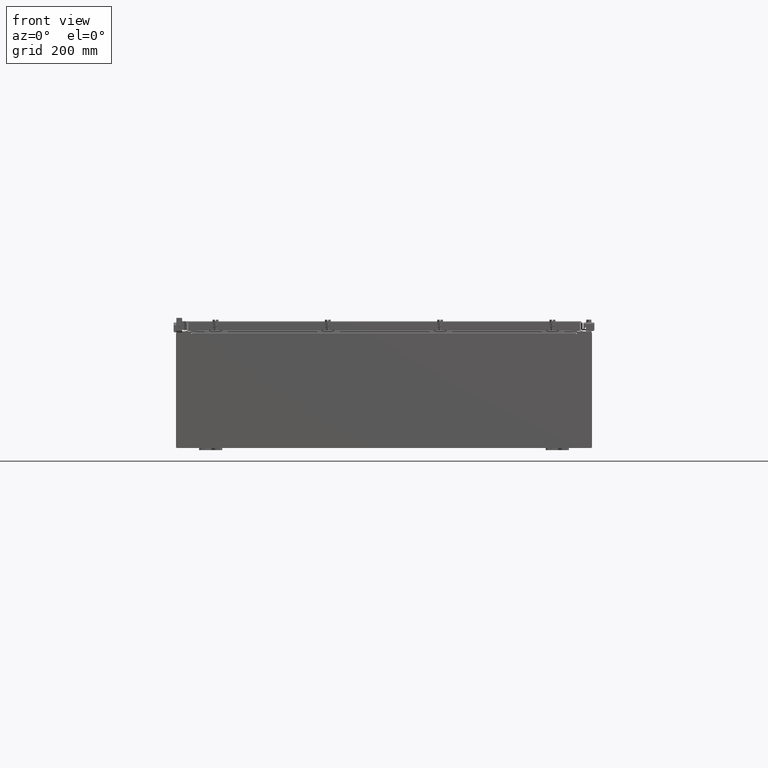
[diagram: clean part render]
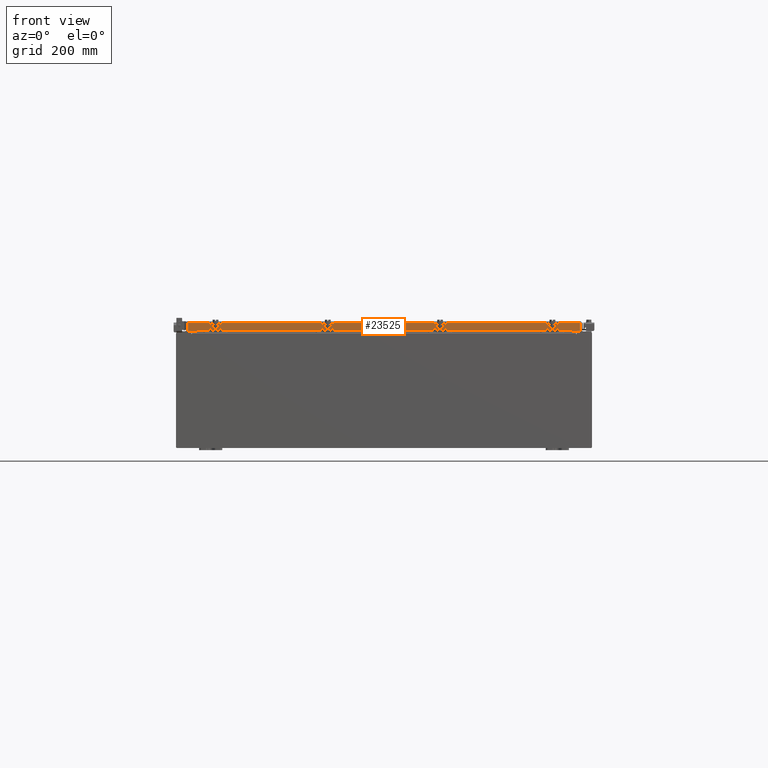
[diagram: same view with one face highlighted and labeled with its STEP entity id]
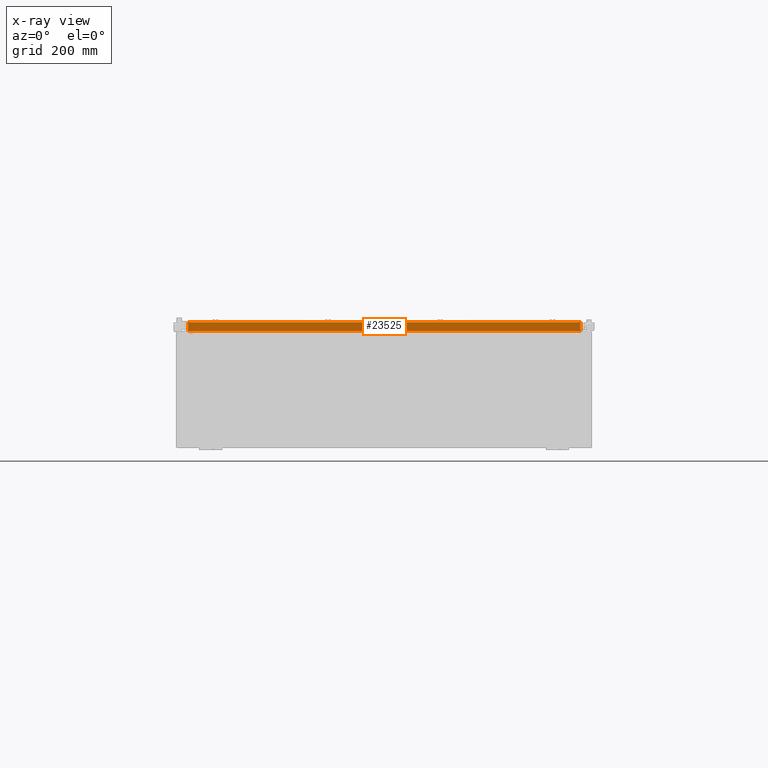
[diagram: x-ray of the same camera — body ghosted, the highlighted face saturated]
A machine part, front view. The second image highlights one B-rep face of the part: STEP entity #23525.
The next image is the same camera in x-ray: the body ghosted, the highlighted face saturated — about 0% of this face is hidden behind the body in this view.
In plain terms, the highlighted planar face has unit normal (0, 1, 0).
Its self-contained STEP definition (entity closure, byte-faithful):
#1379 = LINE ( 'NONE', #6085, #18403 ) ;
#2140 = DIRECTION ( 'NONE',  ( -1.000000000000000000, 1.279703943630056600E-016, 1.239713195391617400E-016 ) ) ;
#2367 = VERTEX_POINT ( 'NONE', #13789 ) ;
#3144 = CARTESIAN_POINT ( 'NONE',  ( 16.23915786437626700, -23.09400000000000100, -0.8499999999999990900 ) ) ;
#4034 = VERTEX_POINT ( 'NONE', #3144 ) ;
#4095 = CARTESIAN_POINT ( 'NONE',  ( -2.955348287419252300E-015, -23.09399999999999400, 2.608136560115737200E-016 ) ) ;
#4461 = LINE ( 'NONE', #5098, #9468 ) ;
#5098 = CARTESIAN_POINT ( 'NONE',  ( 16.23915786437626700, -23.09400000000000100, -0.8499999999999990900 ) ) ;
#5392 = DIRECTION ( 'NONE',  ( -0.0000000000000000000, 3.607333059089402100E-031, -1.000000000000000000 ) ) ;
#5958 = VECTOR ( 'NONE', #2140, 39.37007874015748100 ) ;
#6085 = CARTESIAN_POINT ( 'NONE',  ( 17.07800000000000300, -23.09399999999999400, -0.08769999999999589200 ) ) ;
#6227 = DIRECTION ( 'NONE',  ( -1.000000000000000000, 1.279703943630056600E-016, 0.0000000000000000000 ) ) ;
#8154 = DIRECTION ( 'NONE',  ( 1.000000000000000000, -1.279703943630056600E-016, 1.368455531567204500E-048 ) ) ;
#8631 = VECTOR ( 'NONE', #14182, 39.37007874015748100 ) ;
#9468 = VECTOR ( 'NONE', #26426, 39.37007874015748100 ) ;
#9520 = VERTEX_POINT ( 'NONE', #13994 ) ;
#9551 = CARTESIAN_POINT ( 'NONE',  ( 16.98915786437627100, -23.09399999999999400, -0.08769999999999589200 ) ) ;
#9825 = FACE_OUTER_BOUND ( 'NONE', #19082, .T. ) ;
#9887 = ORIENTED_EDGE ( 'NONE', *, *, #23878, .F. ) ;
#10179 = VECTOR ( 'NONE', #27306, 39.37007874015748100 ) ;
#10599 = CARTESIAN_POINT ( 'NONE',  ( 17.07800000000000300, -23.09400000000000100, -0.8499999999999996400 ) ) ;
#10953 = LINE ( 'NONE', #10599, #5958 ) ;
#10975 = VERTEX_POINT ( 'NONE', #9551 ) ;
#11256 = EDGE_CURVE ( 'NONE', #9520, #10975, #1379, .T. ) ;
#11757 = ORIENTED_EDGE ( 'NONE', *, *, #19126, .F. ) ;
#11837 = CARTESIAN_POINT ( 'NONE',  ( 16.98915786437627100, -23.09399999999999400, -0.07470000000000000300 ) ) ;
#12033 = CARTESIAN_POINT ( 'NONE',  ( -16.98915786437626700, -23.09399999999999400, 2.608136560115737200E-016 ) ) ;
#12433 = CARTESIAN_POINT ( 'NONE',  ( 17.07800000000000300, -23.09400000000000100, -0.8499999999999996400 ) ) ;
#13789 = CARTESIAN_POINT ( 'NONE',  ( -16.98915786437626700, -23.09399999999999400, -0.8499999999999954300 ) ) ;
#13994 = CARTESIAN_POINT ( 'NONE',  ( -16.98915786437626700, -23.09399999999999400, -0.08769999999999589200 ) ) ;
#14182 = DIRECTION ( 'NONE',  ( 0.0000000000000000000, 3.607333059089402100E-031, -1.000000000000000000 ) ) ;
#14332 = LINE ( 'NONE', #12033, #8631 ) ;
#14821 = EDGE_CURVE ( 'NONE', #10975, #26673, #16722, .T. ) ;
#16722 = LINE ( 'NONE', #11837, #22397 ) ;
#18192 = ORIENTED_EDGE ( 'NONE', *, *, #14821, .F. ) ;
#18403 = VECTOR ( 'NONE', #8154, 39.37007874015748100 ) ;
#18964 = EDGE_CURVE ( 'NONE', #9520, #2367, #14332, .T. ) ;
#19021 = DIRECTION ( 'NONE',  ( 1.279703943630056600E-016, 1.000000000000000000, 3.607333059089401300E-031 ) ) ;
#19082 = EDGE_LOOP ( 'NONE', ( #23677, #20560, #11757, #9887, #27375, #18192 ) ) ;
#19126 = EDGE_CURVE ( 'NONE', #25275, #2367, #10953, .T. ) ;
#20560 = ORIENTED_EDGE ( 'NONE', *, *, #18964, .T. ) ;
#21519 = LINE ( 'NONE', #12433, #10179 ) ;
#22173 = CARTESIAN_POINT ( 'NONE',  ( 16.98915786437627100, -23.09399999999999400, -0.8499999999999996400 ) ) ;
#22397 = VECTOR ( 'NONE', #5392, 39.37007874015748100 ) ;
#23525 = ADVANCED_FACE ( 'NONE', ( #9825 ), #27367, .F. ) ;
#23677 = ORIENTED_EDGE ( 'NONE', *, *, #11256, .F. ) ;
#23878 = EDGE_CURVE ( 'NONE', #4034, #25275, #4461, .T. ) ;
#23959 = CARTESIAN_POINT ( 'NONE',  ( -16.23915786437626400, -23.09400000000000100, -0.8499999999999990900 ) ) ;
#25275 = VERTEX_POINT ( 'NONE', #23959 ) ;
#25654 = EDGE_CURVE ( 'NONE', #26673, #4034, #21519, .T. ) ;
#26080 = AXIS2_PLACEMENT_3D ( 'NONE', #4095, #19021, #6227 ) ;
#26426 = DIRECTION ( 'NONE',  ( -1.000000000000000000, 0.0000000000000000000, 0.0000000000000000000 ) ) ;
#26673 = VERTEX_POINT ( 'NONE', #22173 ) ;
#27306 = DIRECTION ( 'NONE',  ( -1.000000000000000000, 1.279703943630056600E-016, 1.239713195391617400E-016 ) ) ;
#27367 = PLANE ( 'NONE',  #26080 ) ;
#27375 = ORIENTED_EDGE ( 'NONE', *, *, #25654, .F. ) ;